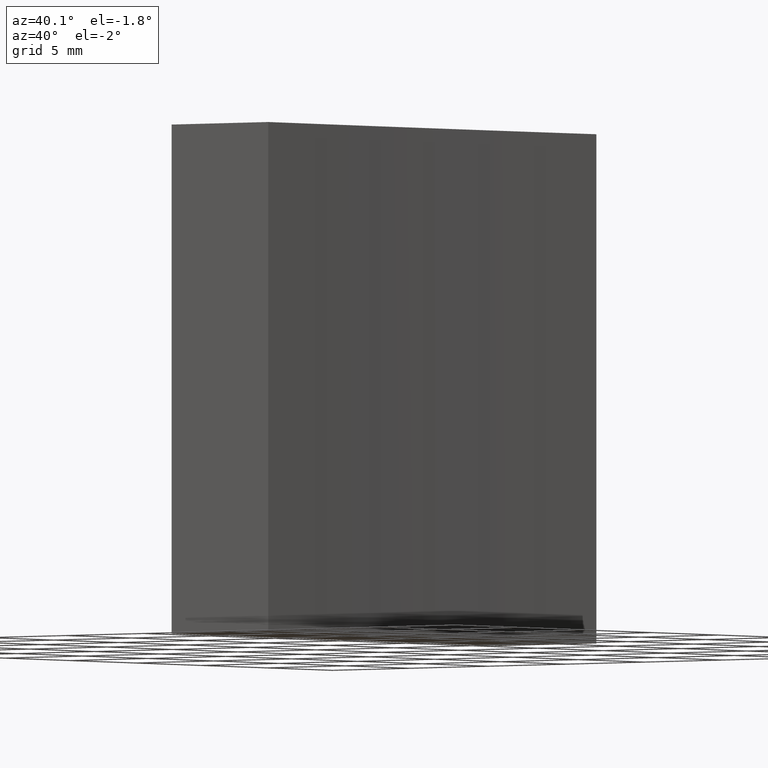
[diagram: clean part render]
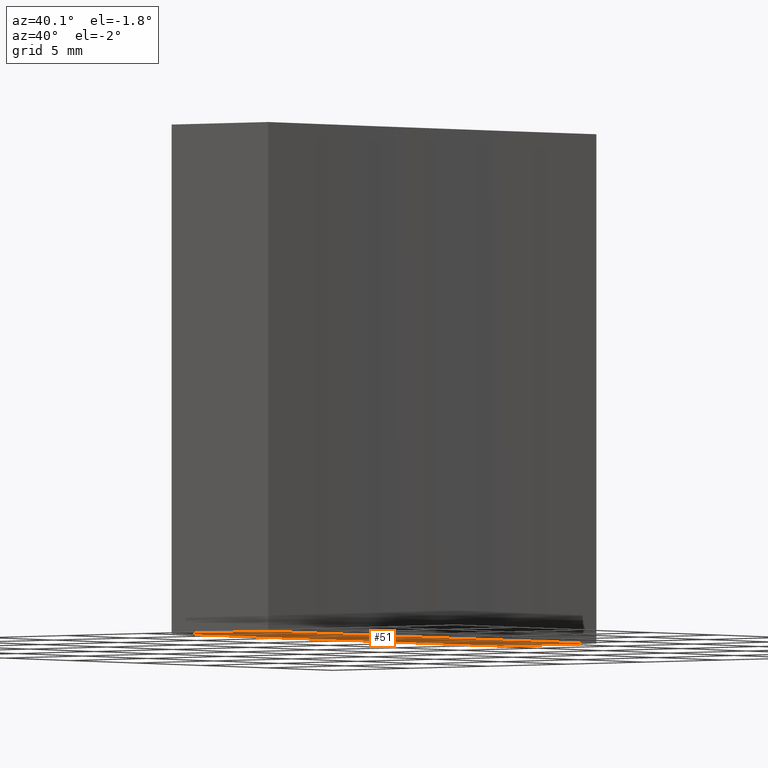
[diagram: same view with one face highlighted and labeled with its STEP entity id]
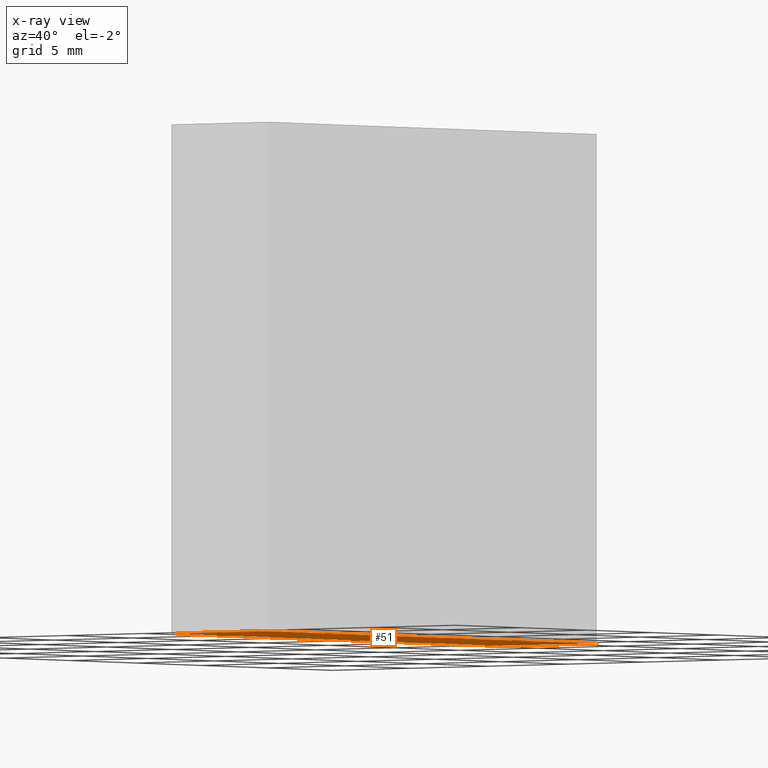
[diagram: x-ray of the same camera — body ghosted, the highlighted face saturated]
A machine part, auxiliary view. The second image highlights one B-rep face of the part: STEP entity #51.
The next image is the same camera in x-ray: the body ghosted, the highlighted face saturated — about 0% of this face is hidden behind the body in this view.
In plain terms, the highlighted planar face has unit normal (0, 0, 1).
Its self-contained STEP definition (entity closure, byte-faithful):
#11 = PLANE ( 'NONE',  #218 ) ;
#29 = DIRECTION ( 'NONE',  ( -0.0000000000000000000, -0.0000000000000000000, -1.000000000000000000 ) ) ;
#35 = AXIS2_PLACEMENT_3D ( 'NONE', #102, #212, #159 ) ;
#42 = EDGE_CURVE ( 'NONE', #78, #209, #90, .T. ) ;
#49 = CARTESIAN_POINT ( 'NONE',  ( 690.7071356183511200, 66.85792926776717600, 0.0000000000000000000 ) ) ;
#50 = CARTESIAN_POINT ( 'NONE',  ( 290.9024958253641000, 54.35792926776729000, 0.0000000000000000000 ) ) ;
#51 = ADVANCED_FACE ( 'NONE', ( #221 ), #11, .F. ) ;
#52 = CARTESIAN_POINT ( 'NONE',  ( 284.7071356312820900, 54.35792926776707600, 0.0000000000000000000 ) ) ;
#61 = VECTOR ( 'NONE', #129, 1000.000000000000000 ) ;
#63 = ORIENTED_EDGE ( 'NONE', *, *, #42, .F. ) ;
#66 = CARTESIAN_POINT ( 'NONE',  ( 690.7071356183511200, 66.85792926776717600, 0.0000000000000000000 ) ) ;
#69 = EDGE_CURVE ( 'NONE', #167, #184, #203, .T. ) ;
#77 = EDGE_CURVE ( 'NONE', #209, #138, #111, .T. ) ;
#78 = VERTEX_POINT ( 'NONE', #161 ) ;
#79 = ORIENTED_EDGE ( 'NONE', *, *, #172, .F. ) ;
#83 = EDGE_CURVE ( 'NONE', #184, #78, #156, .T. ) ;
#90 = CIRCLE ( 'NONE', #226, 400.0000000000000000 ) ;
#94 = ORIENTED_EDGE ( 'NONE', *, *, #69, .F. ) ;
#102 = CARTESIAN_POINT ( 'NONE',  ( 690.7071356183511200, 66.85792926776717600, 0.0000000000000000000 ) ) ;
#110 = CARTESIAN_POINT ( 'NONE',  ( 290.9024958253641000, 79.35792926776707600, 0.0000000000000000000 ) ) ;
#111 = LINE ( 'NONE', #160, #126 ) ;
#112 = LINE ( 'NONE', #180, #61 ) ;
#116 = ORIENTED_EDGE ( 'NONE', *, *, #83, .F. ) ;
#125 = EDGE_LOOP ( 'NONE', ( #94, #79, #143, #63, #116 ) ) ;
#126 = VECTOR ( 'NONE', #228, 1000.000000000000000 ) ;
#129 = DIRECTION ( 'NONE',  ( -0.0000000000000000000, -1.000000000000000000, -0.0000000000000000000 ) ) ;
#138 = VERTEX_POINT ( 'NONE', #227 ) ;
#142 = DIRECTION ( 'NONE',  ( 1.000000000000000000, 0.0000000000000000000, 0.0000000000000000000 ) ) ;
#143 = ORIENTED_EDGE ( 'NONE', *, *, #77, .F. ) ;
#145 = DIRECTION ( 'NONE',  ( 1.000000000000000000, 3.360043816597844900E-014, -0.0000000000000000000 ) ) ;
#156 = CIRCLE ( 'NONE', #35, 400.0000000000000000 ) ;
#159 = DIRECTION ( 'NONE',  ( 1.000000000000000000, 0.0000000000000000000, 0.0000000000000000000 ) ) ;
#160 = CARTESIAN_POINT ( 'NONE',  ( 284.7071356312820900, 79.35792926776707600, 0.0000000000000000000 ) ) ;
#161 = CARTESIAN_POINT ( 'NONE',  ( 290.7071356183510000, 66.85792926776717600, 0.0000000000000000000 ) ) ;
#167 = VERTEX_POINT ( 'NONE', #52 ) ;
#171 = DIRECTION ( 'NONE',  ( 1.000000000000000000, 0.0000000000000000000, -0.0000000000000000000 ) ) ;
#172 = EDGE_CURVE ( 'NONE', #138, #167, #112, .T. ) ;
#173 = DIRECTION ( 'NONE',  ( 0.0000000000000000000, 0.0000000000000000000, 1.000000000000000000 ) ) ;
#177 = CARTESIAN_POINT ( 'NONE',  ( 290.9024958253641000, 54.35792926776742500, 0.0000000000000000000 ) ) ;
#180 = CARTESIAN_POINT ( 'NONE',  ( 284.7071356312820900, 66.85792926776707600, 0.0000000000000000000 ) ) ;
#184 = VERTEX_POINT ( 'NONE', #177 ) ;
#203 = LINE ( 'NONE', #50, #225 ) ;
#209 = VERTEX_POINT ( 'NONE', #110 ) ;
#212 = DIRECTION ( 'NONE',  ( -0.0000000000000000000, -0.0000000000000000000, -1.000000000000000000 ) ) ;
#218 = AXIS2_PLACEMENT_3D ( 'NONE', #49, #173, #171 ) ;
#221 = FACE_OUTER_BOUND ( 'NONE', #125, .T. ) ;
#225 = VECTOR ( 'NONE', #145, 1000.000000000000000 ) ;
#226 = AXIS2_PLACEMENT_3D ( 'NONE', #66, #29, #142 ) ;
#227 = CARTESIAN_POINT ( 'NONE',  ( 284.7071356312820900, 79.35792926776707600, 0.0000000000000000000 ) ) ;
#228 = DIRECTION ( 'NONE',  ( -1.000000000000000000, -0.0000000000000000000, -0.0000000000000000000 ) ) ;